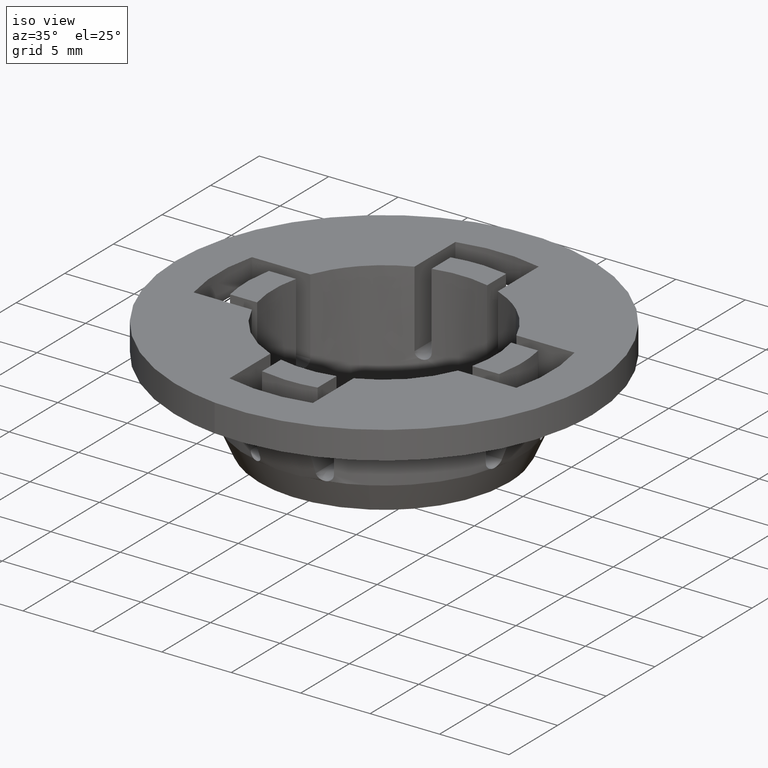
[diagram: clean part render]
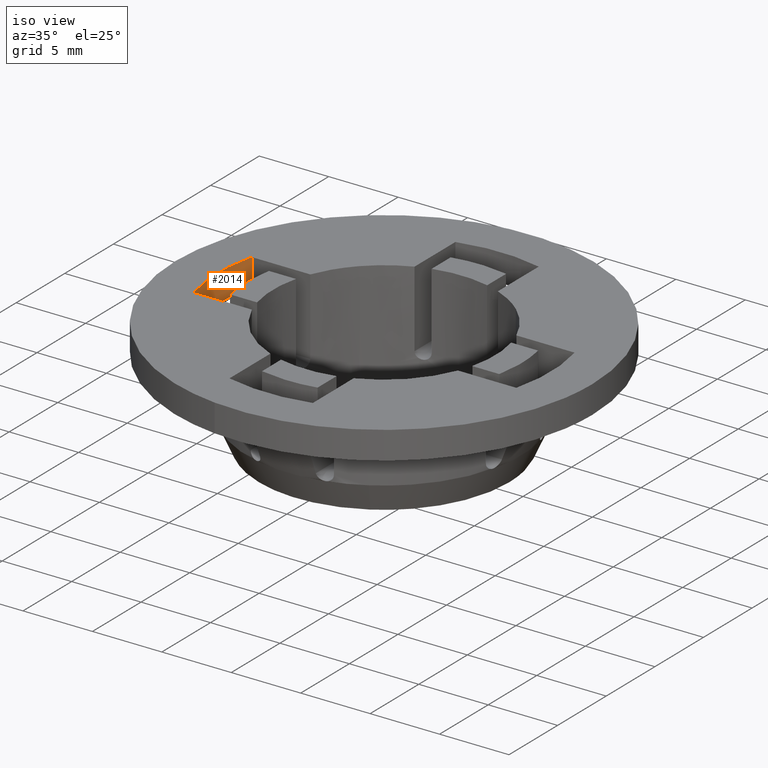
[diagram: same view with one face highlighted and labeled with its STEP entity id]
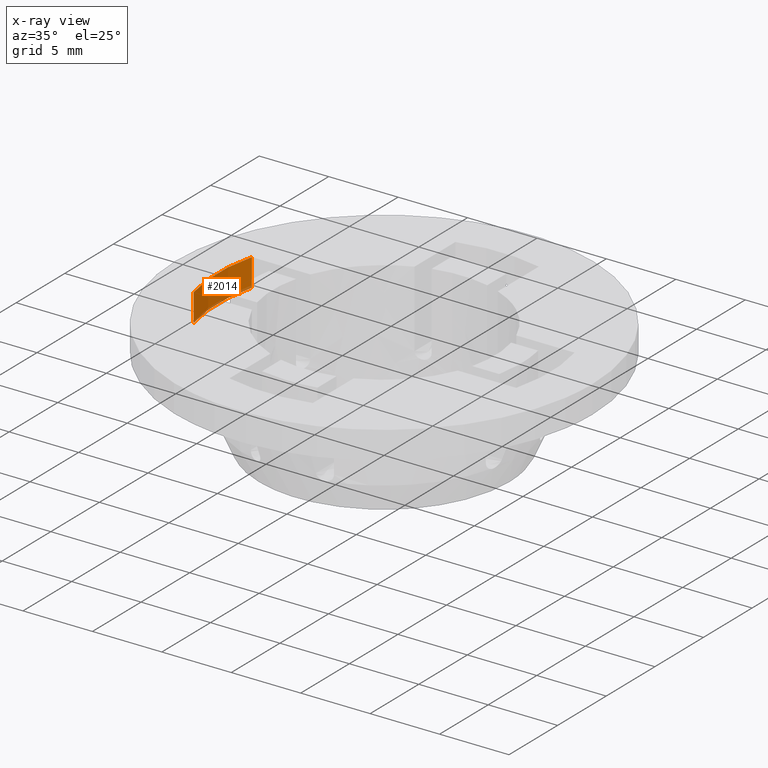
[diagram: x-ray of the same camera — body ghosted, the highlighted face saturated]
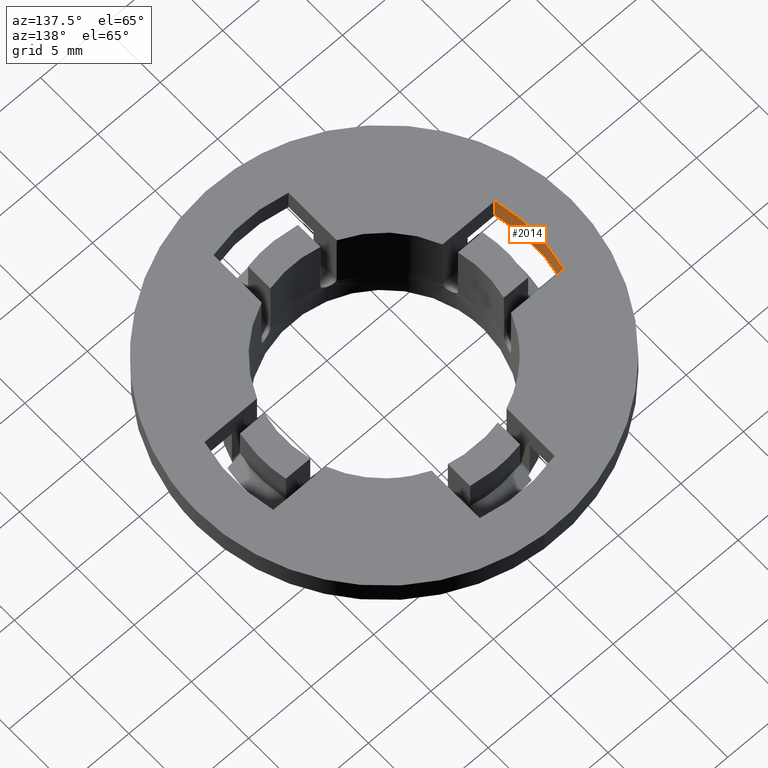
[diagram: same view with one face highlighted and labeled with its STEP entity id]
A machine part, iso view. The second image highlights one B-rep face of the part: STEP entity #2014.
The next image is the same camera in x-ray: the body ghosted, the highlighted face saturated — about 6% of this face is hidden behind the body in this view.
A second angle (auxiliary view) of the same face is appended — the face is thin or edge-on in the first view.
In plain terms, the highlighted face is a freeform B-spline surface patch.
Its self-contained STEP definition (entity closure, byte-faithful):
#1940=CARTESIAN_POINT('',(-11.618950038622140,2.999999999999880,7.999999999999900));
#1941=VERTEX_POINT('',#1940);
#1947=CARTESIAN_POINT('',(-11.618950038622140,2.999999999999880,5.999999999999890));
#1948=VERTEX_POINT('',#1947);
#1949=CARTESIAN_POINT('',(-11.618950038622140,2.999999999999880,5.999999999999890));
#1950=CARTESIAN_POINT('',(-11.618950038622140,2.999999999999880,7.999999999999900));
#1951=QUASI_UNIFORM_CURVE('',1,(#1949,#1950),.UNSPECIFIED.,.F.,.U.);
#1952=EDGE_CURVE('',#1948,#1941,#1951,.T.);
#1962=CARTESIAN_POINT('',(-11.540824676862982,-3.287759993963751,5.949999999999888));
#1963=CARTESIAN_POINT('',(-11.540824676862982,-3.287759993963751,8.051249999999900));
#1964=CARTESIAN_POINT('',(-12.477748868756960,0.001068221603283,5.949999999999888));
#1965=CARTESIAN_POINT('',(-12.477748868756960,0.001068221603283,8.051249999999900));
#1966=CARTESIAN_POINT('',(-11.540261576630924,3.289735968574423,5.949999999999888));
#1967=CARTESIAN_POINT('',(-11.540261576630924,3.289735968574423,8.051249999999900));
#1975=(BOUNDED_SURFACE()B_SPLINE_SURFACE(1,2,((#1962,#1964,#1966),(#1963,#1965,#1967)),.UNSPECIFIED.,.F.,.F.,.U.)B_SPLINE_SURFACE_WITH_KNOTS((2,2),(3,3),(0.0,2.101250000000012),(0.0,6.705851421206274),.UNSPECIFIED.)GEOMETRIC_REPRESENTATION_ITEM()RATIONAL_B_SPLINE_SURFACE(((0.999675483069585,0.957953743749510,0.992521742116545),(0.999675483069585,0.957953743749510,0.992521742116545)))REPRESENTATION_ITEM('')SURFACE());
#1976=CARTESIAN_POINT('',(-11.618950038622140,-3.000000000000115,7.999999999999900));
#1977=VERTEX_POINT('',#1976);
#1978=CARTESIAN_POINT('',(-11.618950038622140,2.999999999999884,7.999999999999900));
#1979=CARTESIAN_POINT('',(-12.393546707863621,-1.108176E-013,7.999999999999900));
#1980=CARTESIAN_POINT('',(-11.618950038622140,-3.000000000000110,7.999999999999900));
#1988=(BOUNDED_CURVE()B_SPLINE_CURVE(2,(#1978,#1979,#1980),.UNSPECIFIED.,.F.,.U.)CURVE()GEOMETRIC_REPRESENTATION_ITEM()QUASI_UNIFORM_CURVE()RATIONAL_B_SPLINE_CURVE((1.0,0.968245836551854,1.0))REPRESENTATION_ITEM(''));
#1989=EDGE_CURVE('',#1941,#1977,#1988,.T.);
#1990=ORIENTED_EDGE('',*,*,#1989,.T.);
#1991=CARTESIAN_POINT('',(-11.618950038622140,-3.000000000000115,5.999999999999890));
#1992=VERTEX_POINT('',#1991);
#1993=CARTESIAN_POINT('',(-11.618950038622140,-3.000000000000115,5.999999999999890));
#1994=CARTESIAN_POINT('',(-11.618950038622140,-3.000000000000115,7.999999999999900));
#1995=QUASI_UNIFORM_CURVE('',1,(#1993,#1994),.UNSPECIFIED.,.F.,.U.);
#1996=EDGE_CURVE('',#1992,#1977,#1995,.T.);
#1997=ORIENTED_EDGE('',*,*,#1996,.F.);
#1998=CARTESIAN_POINT('',(-11.618950038622140,2.999999999999884,5.999999999999890));
#1999=CARTESIAN_POINT('',(-12.393546707863621,-1.108176E-013,5.999999999999891));
#2000=CARTESIAN_POINT('',(-11.618950038622140,-3.000000000000110,5.999999999999890));
#2008=(BOUNDED_CURVE()B_SPLINE_CURVE(2,(#1998,#1999,#2000),.UNSPECIFIED.,.F.,.U.)CURVE()GEOMETRIC_REPRESENTATION_ITEM()QUASI_UNIFORM_CURVE()RATIONAL_B_SPLINE_CURVE((1.0,0.968245836551854,1.0))REPRESENTATION_ITEM(''));
#2009=EDGE_CURVE('',#1948,#1992,#2008,.T.);
#2010=ORIENTED_EDGE('',*,*,#2009,.F.);
#2011=ORIENTED_EDGE('',*,*,#1952,.T.);
#2012=EDGE_LOOP('',(#1990,#1997,#2010,#2011));
#2013=FACE_OUTER_BOUND('',#2012,.T.);
#2014=ADVANCED_FACE('',(#2013),#1975,.F.);